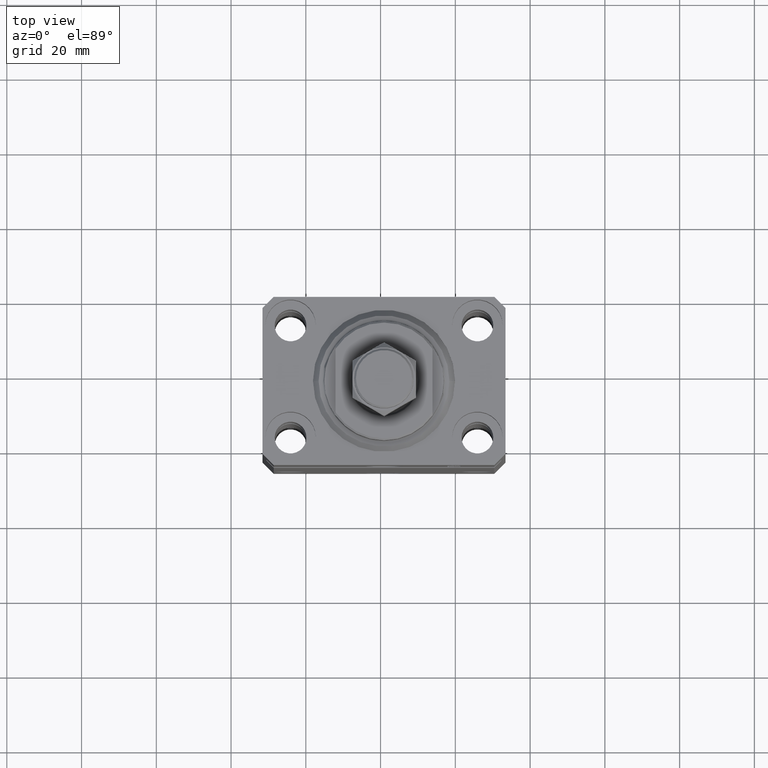
[diagram: clean part render]
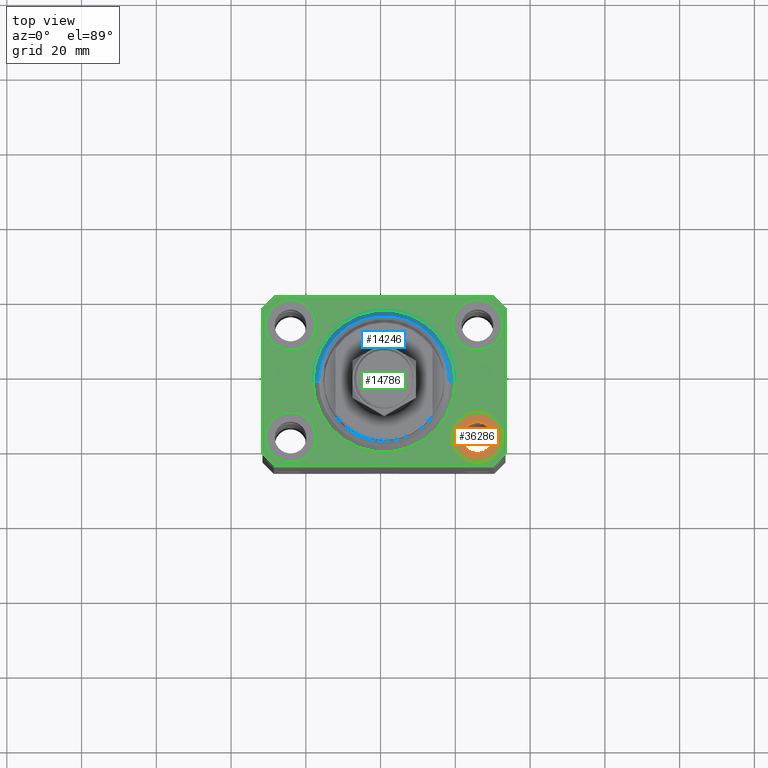
[diagram: same view with three faces highlighted in distinct colors, each labeled with its STEP entity id]
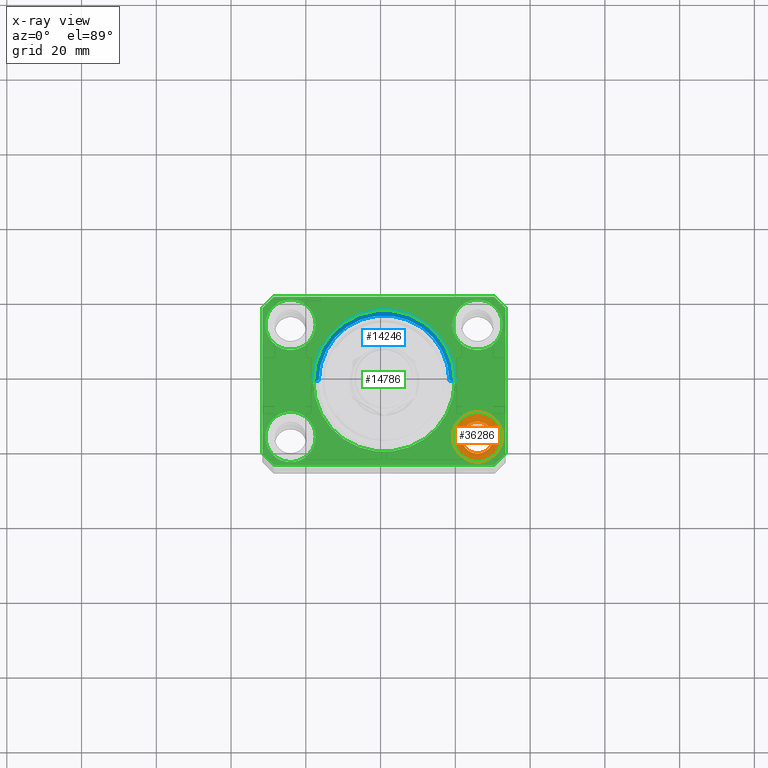
[diagram: x-ray of the same camera — body ghosted, the three highlighted faces saturated]
A machine part, top view with three faces highlighted in distinct colors.
The next image is the same camera in x-ray (body ghosted, the three faces saturated) — at least one of them is partly hidden behind the body in this view.
Their STEP definitions:

[orange] entity #36286 — the highlighted planar face has unit normal (0, 0, 1).
#1767 = CIRCLE ( 'NONE', #23804, 4.249999999977462473 ) ;
#3443 = AXIS2_PLACEMENT_3D ( 'NONE', #37944, #13118, #34832 ) ;
#5490 = DIRECTION ( 'NONE',  ( 1.000000000000000000, 0.000000000000000000, 0.000000000000000000 ) ) ;
#9684 = VERTEX_POINT ( 'NONE', #22343 ) ;
#9915 = CARTESIAN_POINT ( 'NONE',  ( 29.24999999997746869, -15.00000000000000000, -9.000000000000000000 ) ) ;
#10109 = CARTESIAN_POINT ( 'NONE',  ( 25.00000000000000355, -15.00000000000000000, -9.000000000000000000 ) ) ;
#10423 = FACE_BOUND ( 'NONE', #39509, .T. ) ;
#13118 = DIRECTION ( 'NONE',  ( 0.000000000000000000, 0.000000000000000000, 1.000000000000000000 ) ) ;
#13536 = AXIS2_PLACEMENT_3D ( 'NONE', #45291, #38368, #34081 ) ;
#14464 = VERTEX_POINT ( 'NONE', #9915 ) ;
#14911 = CARTESIAN_POINT ( 'NONE',  ( 18.25000000002253842, -15.00000000000000000, -9.000000000000000000 ) ) ;
#15643 = EDGE_CURVE ( 'NONE', #26479, #9684, #29296, .T. ) ;
#16204 = CARTESIAN_POINT ( 'NONE',  ( 25.00000000000000355, -15.00000000000000000, -9.000000000000000000 ) ) ;
#16322 = EDGE_CURVE ( 'NONE', #14464, #44062, #23978, .T. ) ;
#17620 = ORIENTED_EDGE ( 'NONE', *, *, #25209, .T. ) ;
#21047 = CARTESIAN_POINT ( 'NONE',  ( 20.75000000002254197, -15.00000000000000000, -9.000000000000000000 ) ) ;
#22343 = CARTESIAN_POINT ( 'NONE',  ( 31.74999999997746869, -15.00000000000000000, -9.000000000000000000 ) ) ;
#23637 = AXIS2_PLACEMENT_3D ( 'NONE', #28066, #39055, #31891 ) ;
#23804 = AXIS2_PLACEMENT_3D ( 'NONE', #16204, #34097, #5490 ) ;
#23978 = CIRCLE ( 'NONE', #3443, 4.249999999977462473 ) ;
#24296 = ORIENTED_EDGE ( 'NONE', *, *, #15643, .T. ) ;
#24959 = PLANE ( 'NONE',  #23637 ) ;
#25209 = EDGE_CURVE ( 'NONE', #9684, #26479, #36394, .T. ) ;
#26479 = VERTEX_POINT ( 'NONE', #14911 ) ;
#27015 = AXIS2_PLACEMENT_3D ( 'NONE', #10109, #42786, #46132 ) ;
#28066 = CARTESIAN_POINT ( 'NONE',  ( 25.00000000000000355, -15.00000000000000000, -9.000000000000000000 ) ) ;
#29296 = CIRCLE ( 'NONE', #27015, 6.749999999977465137 ) ;
#31891 = DIRECTION ( 'NONE',  ( 1.000000000000000000, 0.000000000000000000, -0.000000000000000000 ) ) ;
#32335 = ORIENTED_EDGE ( 'NONE', *, *, #41571, .F. ) ;
#34081 = DIRECTION ( 'NONE',  ( 1.000000000000000000, 0.000000000000000000, 0.000000000000000000 ) ) ;
#34097 = DIRECTION ( 'NONE',  ( 0.000000000000000000, 0.000000000000000000, 1.000000000000000000 ) ) ;
#34832 = DIRECTION ( 'NONE',  ( 1.000000000000000000, 0.000000000000000000, 0.000000000000000000 ) ) ;
#36286 = ADVANCED_FACE ( 'NONE', ( #10423, #42158 ), #24959, .T. ) ;
#36394 = CIRCLE ( 'NONE', #13536, 6.749999999977465137 ) ;
#37760 = ORIENTED_EDGE ( 'NONE', *, *, #16322, .F. ) ;
#37944 = CARTESIAN_POINT ( 'NONE',  ( 25.00000000000000355, -15.00000000000000000, -9.000000000000000000 ) ) ;
#38043 = EDGE_LOOP ( 'NONE', ( #17620, #24296 ) ) ;
#38368 = DIRECTION ( 'NONE',  ( 0.000000000000000000, 0.000000000000000000, 1.000000000000000000 ) ) ;
#39055 = DIRECTION ( 'NONE',  ( 0.000000000000000000, 0.000000000000000000, 1.000000000000000000 ) ) ;
#39509 = EDGE_LOOP ( 'NONE', ( #37760, #32335 ) ) ;
#41571 = EDGE_CURVE ( 'NONE', #44062, #14464, #1767, .T. ) ;
#42158 = FACE_OUTER_BOUND ( 'NONE', #38043, .T. ) ;
#42786 = DIRECTION ( 'NONE',  ( 0.000000000000000000, 0.000000000000000000, 1.000000000000000000 ) ) ;
#44062 = VERTEX_POINT ( 'NONE', #21047 ) ;
#45291 = CARTESIAN_POINT ( 'NONE',  ( 25.00000000000000355, -15.00000000000000000, -9.000000000000000000 ) ) ;
#46132 = DIRECTION ( 'NONE',  ( 1.000000000000000000, 0.000000000000000000, 0.000000000000000000 ) ) ;

[blue] entity #14246 — the highlighted conical surface has half-angle 45 deg.
#621 = DIRECTION ( 'NONE',  ( -0.000000000000000000, -0.000000000000000000, -1.000000000000000000 ) ) ;
#664 = CARTESIAN_POINT ( 'NONE',  ( 0.000000000000000000, 0.000000000000000000, 1.500000000000004885 ) ) ;
#707 = EDGE_CURVE ( 'NONE', #39607, #26402, #46466, .T. ) ;
#2012 = ORIENTED_EDGE ( 'NONE', *, *, #14843, .F. ) ;
#4002 = DIRECTION ( 'NONE',  ( 1.000000000000000000, 0.000000000000000000, 0.000000000000000000 ) ) ;
#4039 = CARTESIAN_POINT ( 'NONE',  ( 0.000000000000000000, 0.000000000000000000, 1.500000000000004885 ) ) ;
#4614 = DIRECTION ( 'NONE',  ( -0.7071067811865483499, 8.659560562354943952E-17, 0.7071067811865467956 ) ) ;
#7536 = DIRECTION ( 'NONE',  ( 1.000000000000000000, 0.000000000000000000, 0.000000000000000000 ) ) ;
#7873 = CARTESIAN_POINT ( 'NONE',  ( -17.49999999999999289, 2.234980408443919215E-15, 0.000000000000000000 ) ) ;
#10797 = LINE ( 'NONE', #46822, #23954 ) ;
#13449 = VECTOR ( 'NONE', #4614, 1000.000000000000000 ) ;
#13549 = EDGE_LOOP ( 'NONE', ( #24812, #43835, #17256, #2012 ) ) ;
#14246 = ADVANCED_FACE ( 'NONE', ( #36896 ), #43738, .T. ) ;
#14843 = EDGE_CURVE ( 'NONE', #26402, #38135, #10797, .T. ) ;
#15262 = AXIS2_PLACEMENT_3D ( 'NONE', #4039, #22373, #43856 ) ;
#16336 = AXIS2_PLACEMENT_3D ( 'NONE', #664, #36670, #4002 ) ;
#16778 = AXIS2_PLACEMENT_3D ( 'NONE', #19196, #621, #7536 ) ;
#17256 = ORIENTED_EDGE ( 'NONE', *, *, #36019, .F. ) ;
#18796 = CARTESIAN_POINT ( 'NONE',  ( -19.00000000000000000, 0.000000000000000000, 1.500000000000004885 ) ) ;
#19196 = CARTESIAN_POINT ( 'NONE',  ( 0.000000000000000000, 0.000000000000000000, 0.000000000000000000 ) ) ;
#22373 = DIRECTION ( 'NONE',  ( -0.000000000000000000, -0.000000000000000000, 1.000000000000000000 ) ) ;
#23954 = VECTOR ( 'NONE', #36556, 1000.000000000000000 ) ;
#24812 = ORIENTED_EDGE ( 'NONE', *, *, #707, .F. ) ;
#24929 = CARTESIAN_POINT ( 'NONE',  ( 17.49999999999999289, 0.000000000000000000, 0.000000000000000000 ) ) ;
#26402 = VERTEX_POINT ( 'NONE', #24929 ) ;
#29181 = LINE ( 'NONE', #43734, #13449 ) ;
#30767 = VERTEX_POINT ( 'NONE', #18796 ) ;
#35836 = CIRCLE ( 'NONE', #15262, 19.00000000000000000 ) ;
#36019 = EDGE_CURVE ( 'NONE', #38135, #30767, #35836, .T. ) ;
#36556 = DIRECTION ( 'NONE',  ( 0.7071067811865483499, 0.000000000000000000, 0.7071067811865467956 ) ) ;
#36670 = DIRECTION ( 'NONE',  ( -0.000000000000000000, -0.000000000000000000, 1.000000000000000000 ) ) ;
#36896 = FACE_OUTER_BOUND ( 'NONE', #13549, .T. ) ;
#37181 = CARTESIAN_POINT ( 'NONE',  ( 19.00000000000000000, 2.326828918379970970E-15, 1.500000000000004885 ) ) ;
#38135 = VERTEX_POINT ( 'NONE', #37181 ) ;
#39607 = VERTEX_POINT ( 'NONE', #7873 ) ;
#43734 = CARTESIAN_POINT ( 'NONE',  ( -19.00000000000000000, 2.326828918379970970E-15, 1.500000000000004885 ) ) ;
#43738 = CONICAL_SURFACE ( 'NONE', #16336, 19.00000000000000000, 0.7853981633974492782 ) ;
#43835 = ORIENTED_EDGE ( 'NONE', *, *, #46734, .T. ) ;
#43856 = DIRECTION ( 'NONE',  ( 1.000000000000000000, 0.000000000000000000, 0.000000000000000000 ) ) ;
#46466 = CIRCLE ( 'NONE', #16778, 17.49999999999999289 ) ;
#46734 = EDGE_CURVE ( 'NONE', #39607, #30767, #29181, .T. ) ;
#46822 = CARTESIAN_POINT ( 'NONE',  ( 19.00000000000000000, 0.000000000000000000, 1.500000000000004885 ) ) ;

[green] entity #14786 — the highlighted planar face has unit normal (0, 0, 1).
#109 = AXIS2_PLACEMENT_3D ( 'NONE', #43567, #18765, #18523 ) ;
#291 = CARTESIAN_POINT ( 'NONE',  ( 24.99999999999999645, 15.00000000000000888, 0.000000000000000000 ) ) ;
#426 = EDGE_LOOP ( 'NONE', ( #36910, #4871 ) ) ;
#852 = ORIENTED_EDGE ( 'NONE', *, *, #37185, .F. ) ;
#975 = EDGE_CURVE ( 'NONE', #16289, #16914, #39912, .T. ) ;
#1184 = CARTESIAN_POINT ( 'NONE',  ( 29.49999999999707967, 22.49999999999951328, 0.000000000000000000 ) ) ;
#1351 = ORIENTED_EDGE ( 'NONE', *, *, #40158, .T. ) ;
#1861 = CARTESIAN_POINT ( 'NONE',  ( 18.25000000002253842, -15.00000000000000000, 0.000000000000000000 ) ) ;
#2382 = EDGE_LOOP ( 'NONE', ( #852, #18998 ) ) ;
#2704 = EDGE_CURVE ( 'NONE', #16914, #34494, #25388, .T. ) ;
#2849 = CARTESIAN_POINT ( 'NONE',  ( 32.49999999999651124, -19.49999999999949196, 0.000000000000000000 ) ) ;
#2963 = EDGE_CURVE ( 'NONE', #43755, #23981, #35128, .T. ) ;
#3001 = DIRECTION ( 'NONE',  ( -0.7071067811865352493, 0.7071067811865597852, 0.000000000000000000 ) ) ;
#3332 = ORIENTED_EDGE ( 'NONE', *, *, #36989, .F. ) ;
#3717 = VERTEX_POINT ( 'NONE', #29278 ) ;
#3995 = VERTEX_POINT ( 'NONE', #4131 ) ;
#4131 = CARTESIAN_POINT ( 'NONE',  ( -18.24999999995846167, -15.00000000000000000, 0.000000000000000000 ) ) ;
#4298 = CIRCLE ( 'NONE', #30959, 6.749999999977465137 ) ;
#4749 = LINE ( 'NONE', #1184, #26146 ) ;
#4779 = VERTEX_POINT ( 'NONE', #1861 ) ;
#4871 = ORIENTED_EDGE ( 'NONE', *, *, #43973, .F. ) ;
#5231 = EDGE_LOOP ( 'NONE', ( #9451, #26171, #1351, #33617, #12867, #13302, #28282, #35135 ) ) ;
#6006 = CARTESIAN_POINT ( 'NONE',  ( -32.49999999999650413, 19.49999999999949907, 0.000000000000000000 ) ) ;
#6056 = AXIS2_PLACEMENT_3D ( 'NONE', #21792, #33237, #29182 ) ;
#6058 = CARTESIAN_POINT ( 'NONE',  ( -25.00000000000000355, 15.00000000000000000, 0.000000000000000000 ) ) ;
#6302 = FACE_BOUND ( 'NONE', #426, .T. ) ;
#6304 = CARTESIAN_POINT ( 'NONE',  ( -29.49999999999650413, 22.49999999999949907, 0.000000000000000000 ) ) ;
#6379 = DIRECTION ( 'NONE',  ( 0.000000000000000000, 0.000000000000000000, 1.000000000000000000 ) ) ;
#6533 = DIRECTION ( 'NONE',  ( 1.000000000000000000, 0.000000000000000000, -0.000000000000000000 ) ) ;
#6572 = LINE ( 'NONE', #21103, #39329 ) ;
#6627 = VERTEX_POINT ( 'NONE', #46846 ) ;
#6945 = AXIS2_PLACEMENT_3D ( 'NONE', #16586, #13006, #45220 ) ;
#7089 = CIRCLE ( 'NONE', #36012, 6.749999999958452790 ) ;
#7108 = EDGE_CURVE ( 'NONE', #16629, #34980, #7089, .T. ) ;
#7692 = CARTESIAN_POINT ( 'NONE',  ( 32.49999999999651124, -19.49999999999949196, 0.000000000000000000 ) ) ;
#9264 = EDGE_CURVE ( 'NONE', #34494, #16227, #15543, .T. ) ;
#9384 = DIRECTION ( 'NONE',  ( 0.000000000000000000, 0.000000000000000000, 1.000000000000000000 ) ) ;
#9451 = ORIENTED_EDGE ( 'NONE', *, *, #13280, .T. ) ;
#9635 = DIRECTION ( 'NONE',  ( -0.7071067811865474617, -0.7071067811865474617, 0.000000000000000000 ) ) ;
#9719 = CARTESIAN_POINT ( 'NONE',  ( 0.000000000000000000, 0.000000000000000000, 0.000000000000000000 ) ) ;
#9864 = FACE_BOUND ( 'NONE', #15568, .T. ) ;
#9913 = EDGE_LOOP ( 'NONE', ( #10592, #41605 ) ) ;
#10199 = AXIS2_PLACEMENT_3D ( 'NONE', #9719, #27607, #45748 ) ;
#10592 = ORIENTED_EDGE ( 'NONE', *, *, #42311, .F. ) ;
#10942 = AXIS2_PLACEMENT_3D ( 'NONE', #38480, #24851, #35363 ) ;
#11273 = DIRECTION ( 'NONE',  ( 1.000000000000000000, 1.176083712526788232E-16, 0.000000000000000000 ) ) ;
#11353 = CIRCLE ( 'NONE', #6056, 6.750000000041541881 ) ;
#11932 = DIRECTION ( 'NONE',  ( 0.000000000000000000, 0.000000000000000000, 1.000000000000000000 ) ) ;
#11942 = VERTEX_POINT ( 'NONE', #15874 ) ;
#12867 = ORIENTED_EDGE ( 'NONE', *, *, #975, .T. ) ;
#12903 = EDGE_CURVE ( 'NONE', #6627, #38837, #22375, .T. ) ;
#13006 = DIRECTION ( 'NONE',  ( 0.000000000000000000, 0.000000000000000000, 1.000000000000000000 ) ) ;
#13205 = ORIENTED_EDGE ( 'NONE', *, *, #22484, .F. ) ;
#13210 = FACE_BOUND ( 'NONE', #22565, .T. ) ;
#13280 = EDGE_CURVE ( 'NONE', #38025, #13579, #4749, .T. ) ;
#13302 = ORIENTED_EDGE ( 'NONE', *, *, #2704, .T. ) ;
#13385 = DIRECTION ( 'NONE',  ( 0.7071067811865474617, -0.7071067811865474617, 0.000000000000000000 ) ) ;
#13579 = VERTEX_POINT ( 'NONE', #19940 ) ;
#13621 = CARTESIAN_POINT ( 'NONE',  ( -32.49999999999650413, -19.49999999999949907, 0.000000000000000000 ) ) ;
#13671 = DIRECTION ( 'NONE',  ( 0.000000000000000000, 0.000000000000000000, 1.000000000000000000 ) ) ;
#13990 = CARTESIAN_POINT ( 'NONE',  ( 25.00000000000000355, -15.00000000000000000, 0.000000000000000000 ) ) ;
#14371 = VERTEX_POINT ( 'NONE', #47167 ) ;
#14661 = CARTESIAN_POINT ( 'NONE',  ( 29.49999999999650413, -22.49999999999949196, 0.000000000000000000 ) ) ;
#14786 = ADVANCED_FACE ( 'NONE', ( #6302, #9864, #31104, #13210, #42304, #17493 ), #46356, .T. ) ;
#15543 = LINE ( 'NONE', #7692, #41325 ) ;
#15568 = EDGE_LOOP ( 'NONE', ( #13205, #30425 ) ) ;
#15636 = CARTESIAN_POINT ( 'NONE',  ( -31.75000000004154899, -15.00000000000000000, 0.000000000000000000 ) ) ;
#15874 = CARTESIAN_POINT ( 'NONE',  ( -32.49999999999650413, -19.49999999999949907, 0.000000000000000000 ) ) ;
#16227 = VERTEX_POINT ( 'NONE', #20395 ) ;
#16289 = VERTEX_POINT ( 'NONE', #25998 ) ;
#16507 = CIRCLE ( 'NONE', #30984, 6.749999999977465137 ) ;
#16586 = CARTESIAN_POINT ( 'NONE',  ( 24.99999999999999645, 15.00000000000000888, 0.000000000000000000 ) ) ;
#16629 = VERTEX_POINT ( 'NONE', #17116 ) ;
#16914 = VERTEX_POINT ( 'NONE', #30912 ) ;
#17004 = CIRCLE ( 'NONE', #30727, 19.00000000000000000 ) ;
#17116 = CARTESIAN_POINT ( 'NONE',  ( 18.25000000004154543, 15.00000000000000888, 0.000000000000000000 ) ) ;
#17261 = DIRECTION ( 'NONE',  ( 0.000000000000000000, 0.000000000000000000, 1.000000000000000000 ) ) ;
#17493 = FACE_OUTER_BOUND ( 'NONE', #5231, .T. ) ;
#17709 = DIRECTION ( 'NONE',  ( 1.000000000000000000, 0.000000000000000000, 0.000000000000000000 ) ) ;
#17779 = DIRECTION ( 'NONE',  ( 0.7071067811865483499, 0.7071067811865466846, 0.000000000000000000 ) ) ;
#17987 = EDGE_CURVE ( 'NONE', #16227, #38025, #6572, .T. ) ;
#18285 = EDGE_CURVE ( 'NONE', #4779, #3717, #4298, .T. ) ;
#18523 = DIRECTION ( 'NONE',  ( 1.000000000000000000, 0.000000000000000000, 0.000000000000000000 ) ) ;
#18765 = DIRECTION ( 'NONE',  ( 0.000000000000000000, 0.000000000000000000, 1.000000000000000000 ) ) ;
#18910 = CARTESIAN_POINT ( 'NONE',  ( -29.49999999999650413, -22.49999999999949907, 0.000000000000000000 ) ) ;
#18998 = ORIENTED_EDGE ( 'NONE', *, *, #7108, .F. ) ;
#19648 = CARTESIAN_POINT ( 'NONE',  ( 25.00000000000000355, -15.00000000000000000, 0.000000000000000000 ) ) ;
#19796 = DIRECTION ( 'NONE',  ( 1.000000000000000000, 0.000000000000000000, 0.000000000000000000 ) ) ;
#19940 = CARTESIAN_POINT ( 'NONE',  ( -29.49999999999650413, 22.49999999999949907, 0.000000000000000000 ) ) ;
#20395 = CARTESIAN_POINT ( 'NONE',  ( 32.49999999999702993, 19.49999999999945999, 0.000000000000000000 ) ) ;
#20535 = LINE ( 'NONE', #13621, #46695 ) ;
#20597 = CARTESIAN_POINT ( 'NONE',  ( 0.000000000000000000, 0.000000000000000000, 0.000000000000000000 ) ) ;
#20731 = VERTEX_POINT ( 'NONE', #15636 ) ;
#20910 = DIRECTION ( 'NONE',  ( 1.000000000000000000, 0.000000000000000000, 0.000000000000000000 ) ) ;
#21103 = CARTESIAN_POINT ( 'NONE',  ( 32.49999999999702993, 19.49999999999945999, 0.000000000000000000 ) ) ;
#21792 = CARTESIAN_POINT ( 'NONE',  ( -25.00000000000000355, -15.00000000000000000, 0.000000000000000000 ) ) ;
#22375 = CIRCLE ( 'NONE', #10199, 19.00000000000000000 ) ;
#22392 = CARTESIAN_POINT ( 'NONE',  ( 19.00000000000000000, 0.000000000000000000, 0.000000000000000000 ) ) ;
#22484 = EDGE_CURVE ( 'NONE', #3717, #4779, #16507, .T. ) ;
#22565 = EDGE_LOOP ( 'NONE', ( #3332, #33561 ) ) ;
#22923 = AXIS2_PLACEMENT_3D ( 'NONE', #6058, #13671, #35145 ) ;
#23556 = CARTESIAN_POINT ( 'NONE',  ( -31.75000000002253842, 15.00000000000000000, 0.000000000000000000 ) ) ;
#23668 = CIRCLE ( 'NONE', #109, 6.750000000022533087 ) ;
#23831 = DIRECTION ( 'NONE',  ( 0.000000000000000000, 0.000000000000000000, 1.000000000000000000 ) ) ;
#23981 = VERTEX_POINT ( 'NONE', #26530 ) ;
#24851 = DIRECTION ( 'NONE',  ( 0.000000000000000000, 0.000000000000000000, 1.000000000000000000 ) ) ;
#25388 = LINE ( 'NONE', #14661, #30576 ) ;
#25998 = CARTESIAN_POINT ( 'NONE',  ( -29.49999999999650413, -22.49999999999949907, 0.000000000000000000 ) ) ;
#26146 = VECTOR ( 'NONE', #41944, 1000.000000000000000 ) ;
#26171 = ORIENTED_EDGE ( 'NONE', *, *, #26723, .T. ) ;
#26530 = CARTESIAN_POINT ( 'NONE',  ( -18.24999999997747224, 15.00000000000000000, 0.000000000000000000 ) ) ;
#26723 = EDGE_CURVE ( 'NONE', #13579, #14371, #36094, .T. ) ;
#27607 = DIRECTION ( 'NONE',  ( 0.000000000000000000, 0.000000000000000000, 1.000000000000000000 ) ) ;
#28069 = VECTOR ( 'NONE', #9635, 1000.000000000000114 ) ;
#28282 = ORIENTED_EDGE ( 'NONE', *, *, #9264, .T. ) ;
#28700 = CARTESIAN_POINT ( 'NONE',  ( 31.74999999995845101, 15.00000000000000888, 0.000000000000000000 ) ) ;
#29182 = DIRECTION ( 'NONE',  ( 1.000000000000000000, 0.000000000000000000, 0.000000000000000000 ) ) ;
#29278 = CARTESIAN_POINT ( 'NONE',  ( 31.74999999997746869, -15.00000000000000000, 0.000000000000000000 ) ) ;
#29712 = VECTOR ( 'NONE', #11273, 1000.000000000000000 ) ;
#30425 = ORIENTED_EDGE ( 'NONE', *, *, #18285, .F. ) ;
#30576 = VECTOR ( 'NONE', #17779, 1000.000000000000000 ) ;
#30727 = AXIS2_PLACEMENT_3D ( 'NONE', #38399, #23831, #19796 ) ;
#30912 = CARTESIAN_POINT ( 'NONE',  ( 29.49999999999650413, -22.49999999999949196, 0.000000000000000000 ) ) ;
#30959 = AXIS2_PLACEMENT_3D ( 'NONE', #19648, #9384, #17709 ) ;
#30984 = AXIS2_PLACEMENT_3D ( 'NONE', #13990, #6379, #20910 ) ;
#31104 = FACE_BOUND ( 'NONE', #2382, .T. ) ;
#31286 = LINE ( 'NONE', #6006, #42064 ) ;
#31511 = CIRCLE ( 'NONE', #10942, 6.750000000041541881 ) ;
#32233 = EDGE_CURVE ( 'NONE', #3995, #20731, #11353, .T. ) ;
#33237 = DIRECTION ( 'NONE',  ( 0.000000000000000000, 0.000000000000000000, 1.000000000000000000 ) ) ;
#33561 = ORIENTED_EDGE ( 'NONE', *, *, #2963, .F. ) ;
#33617 = ORIENTED_EDGE ( 'NONE', *, *, #41392, .T. ) ;
#34494 = VERTEX_POINT ( 'NONE', #2849 ) ;
#34980 = VERTEX_POINT ( 'NONE', #28700 ) ;
#35128 = CIRCLE ( 'NONE', #22923, 6.750000000022533087 ) ;
#35135 = ORIENTED_EDGE ( 'NONE', *, *, #17987, .T. ) ;
#35145 = DIRECTION ( 'NONE',  ( 1.000000000000000000, 0.000000000000000000, 0.000000000000000000 ) ) ;
#35363 = DIRECTION ( 'NONE',  ( 1.000000000000000000, 0.000000000000000000, 0.000000000000000000 ) ) ;
#36012 = AXIS2_PLACEMENT_3D ( 'NONE', #291, #11932, #37222 ) ;
#36094 = LINE ( 'NONE', #6304, #28069 ) ;
#36784 = DIRECTION ( 'NONE',  ( 1.334402673828349134E-14, 1.000000000000000000, 0.000000000000000000 ) ) ;
#36910 = ORIENTED_EDGE ( 'NONE', *, *, #32233, .F. ) ;
#36989 = EDGE_CURVE ( 'NONE', #23981, #43755, #23668, .T. ) ;
#37185 = EDGE_CURVE ( 'NONE', #34980, #16629, #40434, .T. ) ;
#37222 = DIRECTION ( 'NONE',  ( 1.000000000000000000, 0.000000000000000000, 0.000000000000000000 ) ) ;
#38025 = VERTEX_POINT ( 'NONE', #45806 ) ;
#38399 = CARTESIAN_POINT ( 'NONE',  ( 0.000000000000000000, 0.000000000000000000, 0.000000000000000000 ) ) ;
#38480 = CARTESIAN_POINT ( 'NONE',  ( -25.00000000000000355, -15.00000000000000000, 0.000000000000000000 ) ) ;
#38679 = DIRECTION ( 'NONE',  ( 0.000000000000000000, -1.000000000000000000, 0.000000000000000000 ) ) ;
#38837 = VERTEX_POINT ( 'NONE', #22392 ) ;
#39213 = AXIS2_PLACEMENT_3D ( 'NONE', #20597, #17261, #6533 ) ;
#39329 = VECTOR ( 'NONE', #3001, 1000.000000000000000 ) ;
#39912 = LINE ( 'NONE', #18910, #29712 ) ;
#40158 = EDGE_CURVE ( 'NONE', #14371, #11942, #31286, .T. ) ;
#40434 = CIRCLE ( 'NONE', #6945, 6.749999999958452790 ) ;
#41325 = VECTOR ( 'NONE', #36784, 1000.000000000000000 ) ;
#41392 = EDGE_CURVE ( 'NONE', #11942, #16289, #20535, .T. ) ;
#41605 = ORIENTED_EDGE ( 'NONE', *, *, #12903, .F. ) ;
#41944 = DIRECTION ( 'NONE',  ( -1.000000000000000000, -2.352167425053553784E-16, 0.000000000000000000 ) ) ;
#42064 = VECTOR ( 'NONE', #38679, 1000.000000000000000 ) ;
#42304 = FACE_BOUND ( 'NONE', #9913, .T. ) ;
#42311 = EDGE_CURVE ( 'NONE', #38837, #6627, #17004, .T. ) ;
#43567 = CARTESIAN_POINT ( 'NONE',  ( -25.00000000000000355, 15.00000000000000000, 0.000000000000000000 ) ) ;
#43755 = VERTEX_POINT ( 'NONE', #23556 ) ;
#43973 = EDGE_CURVE ( 'NONE', #20731, #3995, #31511, .T. ) ;
#45220 = DIRECTION ( 'NONE',  ( 1.000000000000000000, 0.000000000000000000, 0.000000000000000000 ) ) ;
#45748 = DIRECTION ( 'NONE',  ( 1.000000000000000000, 0.000000000000000000, 0.000000000000000000 ) ) ;
#45806 = CARTESIAN_POINT ( 'NONE',  ( 29.49999999999707967, 22.49999999999951328, 0.000000000000000000 ) ) ;
#46356 = PLANE ( 'NONE',  #39213 ) ;
#46695 = VECTOR ( 'NONE', #13385, 1000.000000000000114 ) ;
#46846 = CARTESIAN_POINT ( 'NONE',  ( -19.00000000000000000, 2.326828918379970970E-15, 0.000000000000000000 ) ) ;
#47167 = CARTESIAN_POINT ( 'NONE',  ( -32.49999999999650413, 19.49999999999949907, 0.000000000000000000 ) ) ;